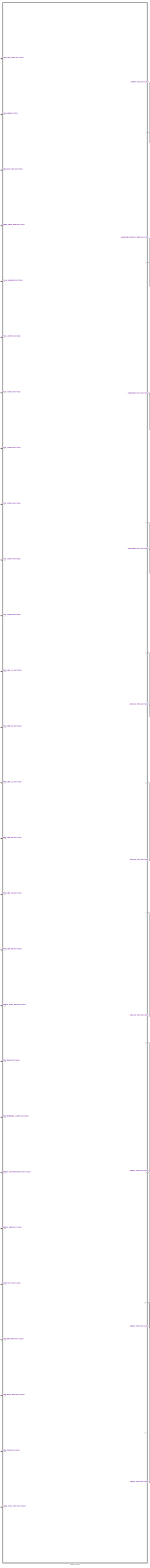
[diagram: root canvas - part 1/12, center side, full height]
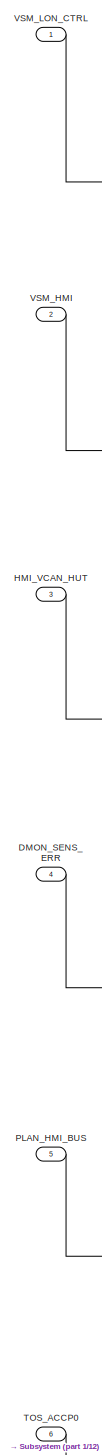
[diagram: root canvas - part 2/12, top left region]
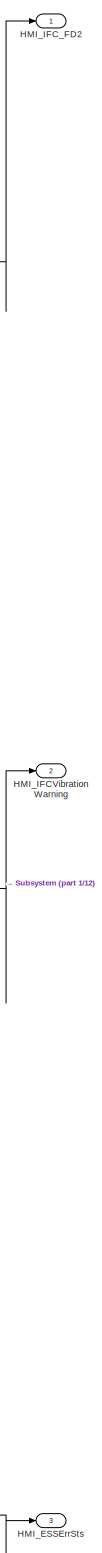
[diagram: root canvas - part 3/12, top right region]
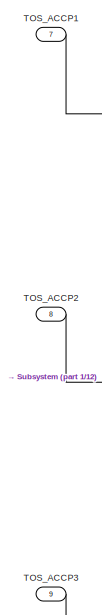
[diagram: root canvas - part 4/12, top left region]
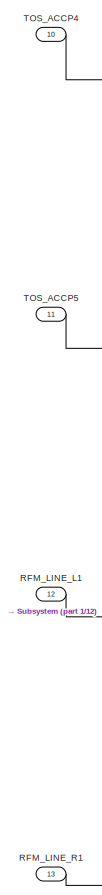
[diagram: root canvas - part 5/12, middle left region]
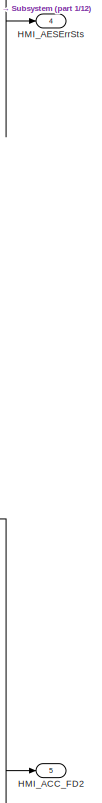
[diagram: root canvas - part 6/12, middle right region]
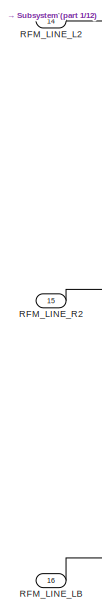
[diagram: root canvas - part 7/12, middle left region]
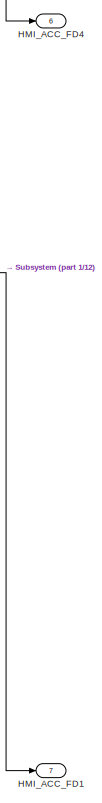
[diagram: root canvas - part 8/12, middle right region]
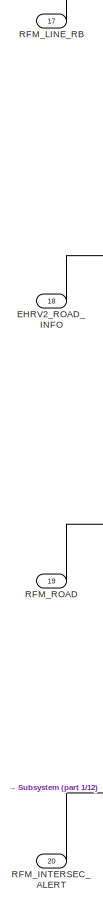
[diagram: root canvas - part 9/12, bottom left region]
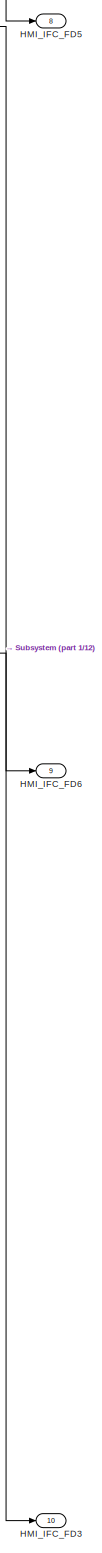
[diagram: root canvas - part 10/12, bottom right region]
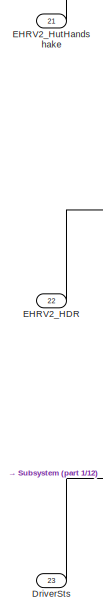
[diagram: root canvas - part 11/12, bottom left region]
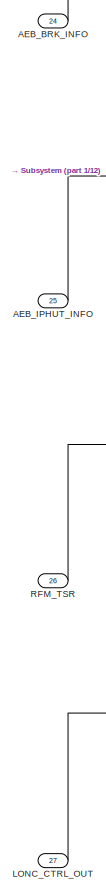
[diagram: root canvas - part 12/12, bottom left region]
MODEL slx_c2e0363d6474
KIND model
CONFIG AbsTol = auto
CONFIG EnableMultiTasking = off
CONFIG FixedStep = auto
CONFIG InitFcn = , if any(exist('rtifpga_mdlclblib', 'file') ~= 0), rtifpga_mdlclblib('Init', bdroot); end,\n, if any(exist('dsmpb_private', 'file') ~= 0), dsmpb_private('dsmpb_mdlclblib', 'Init', bdroot); end,\n
CONFIG MaxStep = auto
CONFIG MinStep = auto
CONFIG PostLoadFcn = if any(exist('dsrtsu_mdlpostloadfcn', 'file') ~= 0), dsrtsu_mdlpostloadfcn('Execute', bdroot); end
CONFIG RelTol = 1e-3
CONFIG SampleTimeConstraint = Unconstrained
CONFIG SolverName = FixedStepAuto
CONFIG StartTime = 0.0
CONFIG StopTime = Inf
BLOCK [Inport] AEB_BRK_INFO
  BusOutputAsStruct = on
  OutDataTypeStr = Bus: AEB_BRK_INFO_BUS
  Port = 24
  PortDimensions = 1
BLOCK [Inport] AEB_IPHUT_INFO
  BusOutputAsStruct = on
  OutDataTypeStr = Bus: AEB_IPHUT_INFO_BUS
  Port = 25
  PortDimensions = 1
BLOCK [Inport] DMON_SENS_ERR
  BusOutputAsStruct = on
  OutDataTypeStr = Bus: DMON_SENS_ERR_BUS
  Port = 4
  PortDimensions = 1
BLOCK [Inport] DriverSts
  BusOutputAsStruct = on
  OutDataTypeStr = uint8
  Port = 23
  PortDimensions = 1
BLOCK [Inport] EHRV2_HDR
  BusOutputAsStruct = on
  OutDataTypeStr = Bus: EHRV2_HDR_BUS
  Port = 22
  PortDimensions = 1
BLOCK [Inport] EHRV2_HutHandshake
  BusOutputAsStruct = on
  OutDataTypeStr = uint8
  Port = 21
  PortDimensions = 1
BLOCK [Inport] EHRV2_ROAD_INFO
  BusOutputAsStruct = on
  OutDataTypeStr = Bus: EHRV2_ROAD_INFO_BUS
  Port = 18
  PortDimensions = 1
BLOCK [Outport] HMI_ACC_FD1
  BusOutputAsStruct = on
  OutDataTypeStr = Bus: HMI_ACC_FD1_BUS
  Port = 7
  PortDimensions = 1
BLOCK [Outport] HMI_ACC_FD2
  BusOutputAsStruct = on
  OutDataTypeStr = Bus: HMI_ACC_FD2_BUS
  Port = 5
  PortDimensions = 1
BLOCK [Outport] HMI_ACC_FD4
  BusOutputAsStruct = on
  OutDataTypeStr = Bus: HMI_ACC_FD4_BUS
  Port = 6
  PortDimensions = 1
BLOCK [Outport] HMI_AESErrSts
  BusOutputAsStruct = on
  OutDataTypeStr = boolean
  Port = 4
BLOCK [Outport] HMI_ESSErrSts
  BusOutputAsStruct = on
  OutDataTypeStr = boolean
  Port = 3
BLOCK [Outport] HMI_IFCVibrationWarning
  BusOutputAsStruct = on
  OutDataTypeStr = uint8
  Port = 2
  PortDimensions = 1
BLOCK [Outport] HMI_IFC_FD2
  BusOutputAsStruct = on
  OutDataTypeStr = Bus: HMI_IFC_FD2_BUS
  PortDimensions = 1
BLOCK [Outport] HMI_IFC_FD3
  BusOutputAsStruct = on
  OutDataTypeStr = Bus: HMI_IFC_FD3_BUS
  Port = 10
  PortDimensions = 1
BLOCK [Outport] HMI_IFC_FD5
  BusOutputAsStruct = on
  OutDataTypeStr = Bus: HMI_IFC_FD5_BUS
  Port = 8
  PortDimensions = 1
BLOCK [Outport] HMI_IFC_FD6
  BusOutputAsStruct = on
  OutDataTypeStr = Bus: HMI_IFC_FD6_BUS
  Port = 9
  PortDimensions = 1
BLOCK [Inport] HMI_VCAN_HUT
  BusOutputAsStruct = on
  OutDataTypeStr = Bus: VCAN_HUT_MSG_BUS
  Port = 3
  PortDimensions = 1
BLOCK [Inport] LONC_CTRL_OUT
  BusOutputAsStruct = on
  OutDataTypeStr = Bus: LONC_CTRL_OUT_BUS
  Port = 27
  PortDimensions = 1
BLOCK [Inport] PLAN_HMI_BUS
  BusOutputAsStruct = on
  OutDataTypeStr = Bus: PLAN_HMI_BUS
  Port = 5
  PortDimensions = 1
BLOCK [Inport] RFM_INTERSEC_ALERT
  BusOutputAsStruct = on
  OutDataTypeStr = Bus: RFM_INTERSEC_ALERT_BUS
  Port = 20
  PortDimensions = 1
BLOCK [Inport] RFM_LINE_L1
  BusOutputAsStruct = on
  NameLocation = right
  OutDataTypeStr = Bus: RFM_LINE_BUS
  Port = 12
  PortDimensions = 1
BLOCK [Inport] RFM_LINE_L2
  BusOutputAsStruct = on
  OutDataTypeStr = Bus: RFM_LINE_BUS
  Port = 14
  PortDimensions = 1
BLOCK [Inport] RFM_LINE_LB
  BusOutputAsStruct = on
  OutDataTypeStr = Bus: RFM_LINE_BUS
  Port = 16
  PortDimensions = 1
BLOCK [Inport] RFM_LINE_R1
  BusOutputAsStruct = on
  OutDataTypeStr = Bus: RFM_LINE_BUS
  Port = 13
  PortDimensions = 1
BLOCK [Inport] RFM_LINE_R2
  BusOutputAsStruct = on
  OutDataTypeStr = Bus: RFM_LINE_BUS
  Port = 15
  PortDimensions = 1
BLOCK [Inport] RFM_LINE_RB
  BusOutputAsStruct = on
  OutDataTypeStr = Bus: RFM_LINE_BUS
  Port = 17
  PortDimensions = 1
BLOCK [Inport] RFM_ROAD
  BusOutputAsStruct = on
  OutDataTypeStr = Bus: RFM_ROAD_BUS
  Port = 19
  PortDimensions = 1
BLOCK [Inport] RFM_TSR
  BusOutputAsStruct = on
  OutDataTypeStr = Bus: RFM_TSR_BUS
  Port = 26
  PortDimensions = 1
BLOCK [SubSystem] Subsystem
  Ports = [27, 11]
  ReferencedSubsystem = PvtSubSys_HMI
  RequestExecContextInheritance = off
BLOCK [Inport] TOS_ACCP0
  BusOutputAsStruct = on
  OutDataTypeStr = Bus: TOS_ACCP0_BUS
  Port = 6
  PortDimensions = 1
BLOCK [Inport] TOS_ACCP1
  BusOutputAsStruct = on
  OutDataTypeStr = Bus: TOS_ACCP1_BUS
  Port = 7
  PortDimensions = 1
BLOCK [Inport] TOS_ACCP2
  BusOutputAsStruct = on
  OutDataTypeStr = Bus: TOS_ACCP2_BUS
  Port = 8
  PortDimensions = 1
BLOCK [Inport] TOS_ACCP3
  BusOutputAsStruct = on
  OutDataTypeStr = Bus: TOS_ACCP3_BUS
  Port = 9
  PortDimensions = 1
BLOCK [Inport] TOS_ACCP4
  BusOutputAsStruct = on
  OutDataTypeStr = Bus: TOS_ACCP4_BUS
  Port = 10
  PortDimensions = 1
BLOCK [Inport] TOS_ACCP5
  BusOutputAsStruct = on
  OutDataTypeStr = Bus: TOS_ACCP5_BUS
  Port = 11
  PortDimensions = 1
BLOCK [Inport] VSM_HMI
  BusOutputAsStruct = on
  OutDataTypeStr = Bus: VSM_HMI_BUS
  Port = 2
  PortDimensions = 1
BLOCK [Inport] VSM_LON_CTRL
  BusOutputAsStruct = on
  OutDataTypeStr = Bus: VSM_LON_CTRL_BUS
  PortDimensions = 1
LINE AEB_BRK_INFO:1 -> Subsystem:24
LINE AEB_IPHUT_INFO:1 -> Subsystem:25
LINE DMON_SENS_ERR:1 -> Subsystem:4
LINE DriverSts:1 -> Subsystem:23
LINE EHRV2_HDR:1 -> Subsystem:22
LINE EHRV2_HutHandshake:1 -> Subsystem:21
LINE EHRV2_ROAD_INFO:1 -> Subsystem:18
LINE HMI_VCAN_HUT:1 -> Subsystem:3
LINE LONC_CTRL_OUT:1 -> Subsystem:27
LINE PLAN_HMI_BUS:1 -> Subsystem:5
LINE RFM_INTERSEC_ALERT:1 -> Subsystem:20
LINE RFM_LINE_L1:1 -> Subsystem:12
LINE RFM_LINE_L2:1 -> Subsystem:14
LINE RFM_LINE_LB:1 -> Subsystem:16
LINE RFM_LINE_R1:1 -> Subsystem:13
LINE RFM_LINE_R2:1 -> Subsystem:15
LINE RFM_LINE_RB:1 -> Subsystem:17
LINE RFM_ROAD:1 -> Subsystem:19
LINE RFM_TSR:1 -> Subsystem:26
LINE Subsystem:1 -> HMI_IFC_FD2:1
LINE Subsystem:10 -> HMI_IFC_FD3:1
LINE Subsystem:2 -> HMI_IFCVibrationWarning:1
LINE Subsystem:3 -> HMI_ESSErrSts:1
LINE Subsystem:4 -> HMI_AESErrSts:1
LINE Subsystem:5 -> HMI_ACC_FD2:1
LINE Subsystem:6 -> HMI_ACC_FD4:1
LINE Subsystem:7 -> HMI_ACC_FD1:1
LINE Subsystem:8 -> HMI_IFC_FD5:1
LINE Subsystem:9 -> HMI_IFC_FD6:1
LINE TOS_ACCP0:1 -> Subsystem:6
LINE TOS_ACCP1:1 -> Subsystem:7
LINE TOS_ACCP2:1 -> Subsystem:8
LINE TOS_ACCP3:1 -> Subsystem:9
LINE TOS_ACCP4:1 -> Subsystem:10
LINE TOS_ACCP5:1 -> Subsystem:11
LINE VSM_HMI:1 -> Subsystem:2
LINE VSM_LON_CTRL:1 -> Subsystem:1
